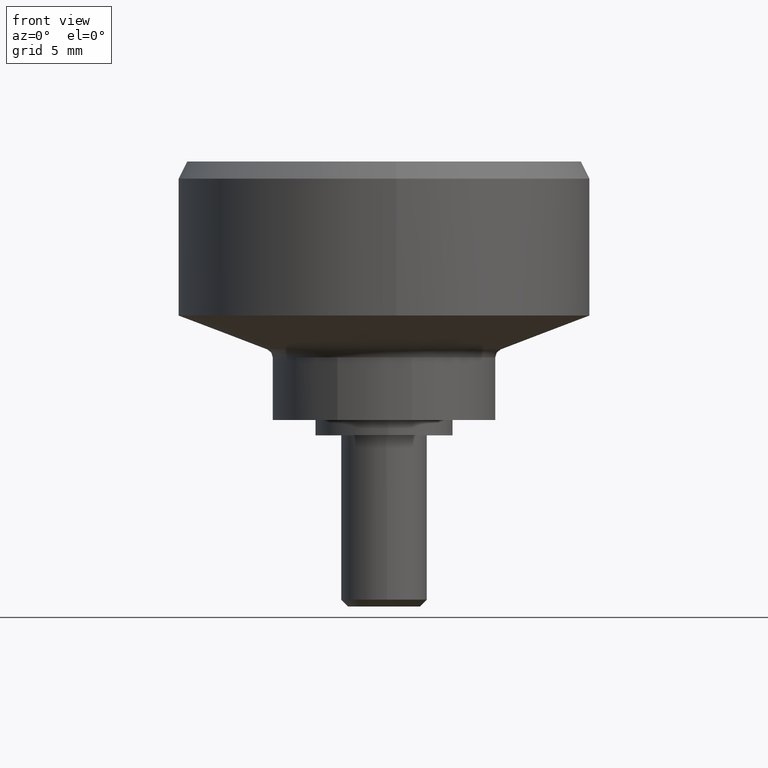
[diagram: clean part render]
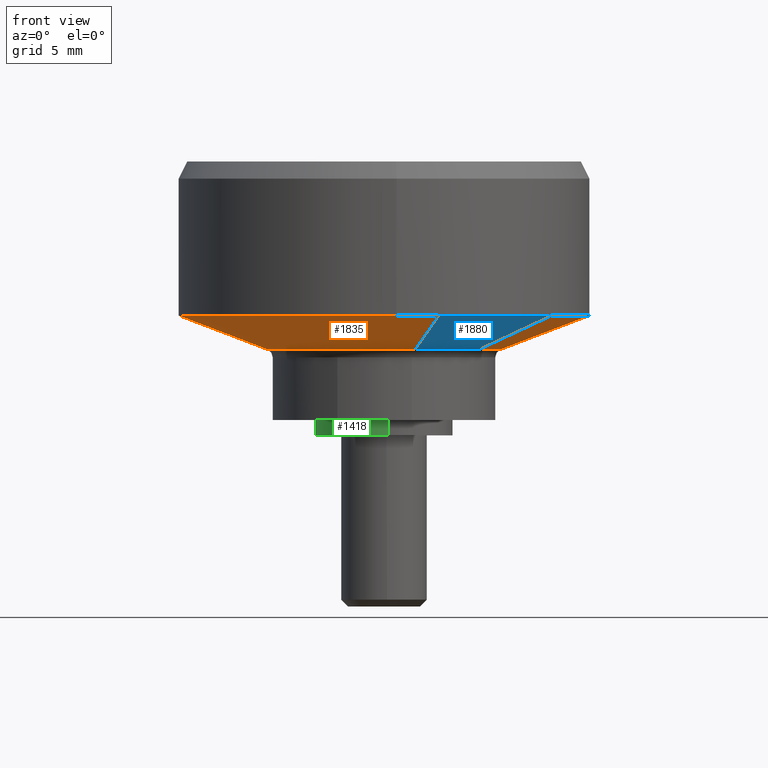
[diagram: same view with three faces highlighted in distinct colors, each labeled with its STEP entity id]
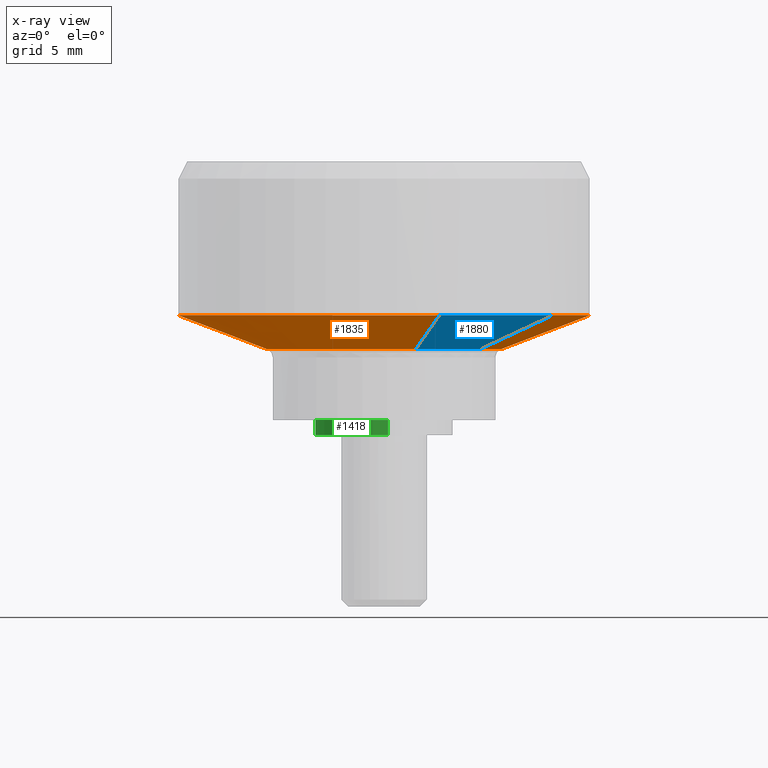
[diagram: x-ray of the same camera — body ghosted, the three highlighted faces saturated]
A machine part, front view with three faces highlighted in distinct colors.
The next image is the same camera in x-ray (body ghosted, the three faces saturated) — at least one of them is partly hidden behind the body in this view.
Their STEP definitions:

[orange] entity #1835 — the highlighted face is a freeform B-spline surface patch.
#1635=CARTESIAN_POINT('',(5.467015541842025,-3.855292350006404,4.972407251425723));
#1636=CARTESIAN_POINT('',(7.293157619141127,-1.265722944669534,4.972407251425723));
#1637=CARTESIAN_POINT('',(6.446359170171644,1.787733617713811,4.972407251425723));
#1638=CARTESIAN_POINT('',(4.658625552457833,8.234092787885455,4.972407251425723));
#1639=CARTESIAN_POINT('',(-1.787733617713811,6.446359170171644,4.972407251425723));
#1640=CARTESIAN_POINT('',(-8.234092787885455,4.658625552457833,4.972407251425723));
#1641=CARTESIAN_POINT('',(-6.446359170171644,-1.787733617713811,4.972407251425723));
#1642=CARTESIAN_POINT('',(-4.658625552457833,-8.234092787885455,4.972407251425723));
#1643=CARTESIAN_POINT('',(1.787733617713811,-6.446359170171644,4.972407251425723));
#1644=CARTESIAN_POINT('',(9.915300472576435,-6.992184632981497,7.050689818714460));
#1645=CARTESIAN_POINT('',(13.227298995985558,-2.295589470229332,7.050689818714459));
#1646=CARTESIAN_POINT('',(11.691495595211769,3.242338685319716,7.050689818714460));
#1647=CARTESIAN_POINT('',(8.449156909892054,14.933834280531485,7.050689818714460));
#1648=CARTESIAN_POINT('',(-3.242338685319716,11.691495595211769,7.050689818714460));
#1649=CARTESIAN_POINT('',(-14.933834280531485,8.449156909892054,7.050689818714460));
#1650=CARTESIAN_POINT('',(-11.691495595211769,-3.242338685319716,7.050689818714460));
#1651=CARTESIAN_POINT('',(-8.449156909892054,-14.933834280531485,7.050689818714460));
#1652=CARTESIAN_POINT('',(3.242338685319716,-11.691495595211769,7.050689818714460));
#1660=(BOUNDED_SURFACE()B_SPLINE_SURFACE(2,1,((#1635,#1644),(#1636,#1645),(#1637,#1646),(#1638,#1647),(#1639,#1648),(#1640,#1649),(#1641,#1650),(#1642,#1651),(#1643,#1652)),.UNSPECIFIED.,.F.,.F.,.U.)B_SPLINE_SURFACE_WITH_KNOTS((3,2,2,2,3),(2,2),(0.0,11.257239010447091,31.359451529102600,51.461664047758120,71.563876566413640),(0.0,5.826370263679075),.UNSPECIFIED.)GEOMETRIC_REPRESENTATION_ITEM()RATIONAL_B_SPLINE_SURFACE(((0.855662221768731,0.855662221768731),(0.835979797464467,0.835979797464467),(1.0,1.0),(0.707106781186548,0.707106781186548),(1.0,1.0),(0.707106781186548,0.707106781186548),(1.0,1.0),(0.707106781186548,0.707106781186548),(1.0,1.0)))REPRESENTATION_ITEM('')SURFACE());
#1661=CARTESIAN_POINT('',(12.0,0.0,7.000000000000100));
#1662=VERTEX_POINT('',#1661);
#1663=CARTESIAN_POINT('',(9.806805718163803,-6.915675065111017,7.000000000000236));
#1664=VERTEX_POINT('',#1663);
#1665=CARTESIAN_POINT('',(12.0,0.0,7.000000000000100));
#1666=CARTESIAN_POINT('',(11.999999999999998,-3.805605545992757,7.000000000000100));
#1667=CARTESIAN_POINT('',(9.806805718163803,-6.915675065111017,7.000000000000236));
#1675=(BOUNDED_CURVE()B_SPLINE_CURVE(2,(#1665,#1666,#1667),.UNSPECIFIED.,.F.,.U.)B_SPLINE_CURVE_WITH_KNOTS((3,3),(0.500000000000000,0.599105163479123),.UNSPECIFIED.)CURVE()GEOMETRIC_REPRESENTATION_ITEM()RATIONAL_B_SPLINE_CURVE((1.0,0.883891078670265,0.859838106378674))REPRESENTATION_ITEM(''));
#1676=EDGE_CURVE('',#1662,#1664,#1675,.T.);
#1677=ORIENTED_EDGE('',*,*,#1676,.T.);
#1678=CARTESIAN_POINT('',(5.572863938172661,-3.929935704903423,5.021860660275134));
#1679=VERTEX_POINT('',#1678);
#1680=CARTESIAN_POINT('',(5.572863938172661,-3.929935704903423,5.021860660275134));
#1681=CARTESIAN_POINT('',(9.806805718163803,-6.915675065111017,7.000000000000236));
#1682=QUASI_UNIFORM_CURVE('',1,(#1680,#1681),.UNSPECIFIED.,.F.,.U.);
#1683=EDGE_CURVE('',#1679,#1664,#1682,.T.);
#1684=ORIENTED_EDGE('',*,*,#1683,.F.);
#1685=CARTESIAN_POINT('',(6.819179549401331,0.0,5.021860733314310));
#1686=VERTEX_POINT('',#1685);
#1687=CARTESIAN_POINT('',(6.819179549401331,0.0,5.021860733314310));
#1688=CARTESIAN_POINT('',(6.819179549401332,-2.162592271084254,5.021860733314310));
#1689=CARTESIAN_POINT('',(5.572863938172660,-3.929935704903423,5.021860660275134));
#1697=(BOUNDED_CURVE()B_SPLINE_CURVE(2,(#1687,#1688,#1689),.UNSPECIFIED.,.F.,.U.)B_SPLINE_CURVE_WITH_KNOTS((3,3),(0.500000000000000,0.599105162603816),.UNSPECIFIED.)CURVE()GEOMETRIC_REPRESENTATION_ITEM()RATIONAL_B_SPLINE_CURVE((1.0,0.883891079695750,0.859838106803551))REPRESENTATION_ITEM(''));
#1698=EDGE_CURVE('',#1686,#1679,#1697,.T.);
#1699=ORIENTED_EDGE('',*,*,#1698,.F.);
#1700=CARTESIAN_POINT('',(-1.844081191552246,6.565102762351328,5.021860733152093));
#1701=VERTEX_POINT('',#1700);
#1702=CARTESIAN_POINT('',(-1.844081191552246,6.565102762351328,5.021860733152093));
#1703=CARTESIAN_POINT('',(-0.939543896083612,6.819179549401331,5.021860733314309));
#1704=CARTESIAN_POINT('',(0.0,6.819179549401331,5.021860733314310));
#1705=CARTESIAN_POINT('',(6.819179549401331,6.819179549401331,5.021860733314309));
#1706=CARTESIAN_POINT('',(6.819179549401331,0.0,5.021860733314310));
#1714=(BOUNDED_CURVE()B_SPLINE_CURVE(2,(#1702,#1703,#1704,#1705,#1706),.UNSPECIFIED.,.F.,.U.)B_SPLINE_CURVE_WITH_KNOTS((3,2,3),(0.203917489193442,0.250000000000000,0.500000000000000),.UNSPECIFIED.)CURVE()GEOMETRIC_REPRESENTATION_ITEM()RATIONAL_B_SPLINE_CURVE((0.911925557295283,0.946010980315446,1.0,0.707106781186547,1.0))REPRESENTATION_ITEM(''));
#1715=EDGE_CURVE('',#1701,#1686,#1714,.T.);
#1716=ORIENTED_EDGE('',*,*,#1715,.F.);
#1717=CARTESIAN_POINT('',(-6.819179549401331,0.0,5.021860733314310));
#1718=VERTEX_POINT('',#1717);
#1719=CARTESIAN_POINT('',(-6.819179549401331,0.0,5.021860733314310));
#1720=CARTESIAN_POINT('',(-6.819179549401332,5.167640203539840,5.021860733314310));
#1721=CARTESIAN_POINT('',(-1.844081191552246,6.565102762351328,5.021860733152093));
#1729=(BOUNDED_CURVE()B_SPLINE_CURVE(2,(#1719,#1720,#1721),.UNSPECIFIED.,.F.,.U.)B_SPLINE_CURVE_WITH_KNOTS((3,3),(0.0,0.203917489193442),.UNSPECIFIED.)CURVE()GEOMETRIC_REPRESENTATION_ITEM()RATIONAL_B_SPLINE_CURVE((1.0,0.761095800871102,0.911925557295283))REPRESENTATION_ITEM(''));
#1730=EDGE_CURVE('',#1718,#1701,#1729,.T.);
#1731=ORIENTED_EDGE('',*,*,#1730,.F.);
#1732=CARTESIAN_POINT('',(-6.308267569937057,-2.589781841286591,5.021860733098269));
#1733=VERTEX_POINT('',#1732);
#1734=CARTESIAN_POINT('',(-6.308267569937058,-2.589781841286591,5.021860733098269));
#1735=CARTESIAN_POINT('',(-6.819179549401331,-1.345287260341393,5.021860733314310));
#1736=CARTESIAN_POINT('',(-6.819179549401331,0.0,5.021860733314310));
#1744=(BOUNDED_CURVE()B_SPLINE_CURVE(2,(#1734,#1735,#1736),.UNSPECIFIED.,.F.,.U.)B_SPLINE_CURVE_WITH_KNOTS((3,3),(0.935520056551151,1.0),.UNSPECIFIED.)CURVE()GEOMETRIC_REPRESENTATION_ITEM()RATIONAL_B_SPLINE_CURVE((0.887882137081259,0.924457047257429,1.0))REPRESENTATION_ITEM(''));
#1745=EDGE_CURVE('',#1733,#1718,#1744,.T.);
#1746=ORIENTED_EDGE('',*,*,#1745,.F.);
#1747=CARTESIAN_POINT('',(1.822346469014642,-6.571169079693356,5.021860733316403));
#1748=VERTEX_POINT('',#1747);
#1749=CARTESIAN_POINT('',(1.822346469014642,-6.571169079693356,5.021860733316403));
#1750=CARTESIAN_POINT('',(0.928049606321761,-6.819179549401330,5.021860733314310));
#1751=CARTESIAN_POINT('',(0.0,-6.819179549401331,5.021860733314310));
#1752=CARTESIAN_POINT('',(-4.571940240927900,-6.819179549401331,5.021860733314309));
#1753=CARTESIAN_POINT('',(-6.308267569937057,-2.589781841286591,5.021860733098269));
#1761=(BOUNDED_CURVE()B_SPLINE_CURVE(2,(#1749,#1750,#1751,#1752,#1753),.UNSPECIFIED.,.F.,.U.)B_SPLINE_CURVE_WITH_KNOTS((3,2,3),(0.704451173363797,0.750000000000000,0.935520056551151),.UNSPECIFIED.)CURVE()GEOMETRIC_REPRESENTATION_ITEM()RATIONAL_B_SPLINE_CURVE((0.912717717216091,0.946636230213387,1.0,0.782649733929119,0.887882137081258))REPRESENTATION_ITEM(''));
#1762=EDGE_CURVE('',#1748,#1733,#1761,.T.);
#1763=ORIENTED_EDGE('',*,*,#1762,.F.);
#1764=CARTESIAN_POINT('',(3.206857090964961,-11.563560053254580,6.999997669421440));
#1765=VERTEX_POINT('',#1764);
#1766=CARTESIAN_POINT('',(1.822346469014642,-6.571169079693356,5.021860733316403));
#1767=CARTESIAN_POINT('',(3.206857090964961,-11.563560053254580,6.999997669421440));
#1768=QUASI_UNIFORM_CURVE('',1,(#1766,#1767),.UNSPECIFIED.,.F.,.U.);
#1769=EDGE_CURVE('',#1748,#1765,#1768,.T.);
#1770=ORIENTED_EDGE('',*,*,#1769,.T.);
#1771=CARTESIAN_POINT('',(0.732582480523389,-11.977617580689000,7.000000000000099));
#1772=VERTEX_POINT('',#1771);
#1773=CARTESIAN_POINT('',(3.206857090964962,-11.563560053254582,6.999997669421440));
#1774=CARTESIAN_POINT('',(1.991479060193668,-11.900617175267039,6.999998834710769));
#1775=CARTESIAN_POINT('',(0.732582480523389,-11.977617580688998,7.000000000000099));
#1783=(BOUNDED_CURVE()B_SPLINE_CURVE(2,(#1773,#1774,#1775),.UNSPECIFIED.,.F.,.U.)B_SPLINE_CURVE_WITH_KNOTS((3,3),(0.704451198352973,0.739332962066071),.UNSPECIFIED.)CURVE()GEOMETRIC_REPRESENTATION_ITEM()RATIONAL_B_SPLINE_CURVE((0.912717754433111,0.938692911541862,0.976072041296221))REPRESENTATION_ITEM(''));
#1784=EDGE_CURVE('',#1765,#1772,#1783,.T.);
#1785=ORIENTED_EDGE('',*,*,#1784,.T.);
#1786=CARTESIAN_POINT('',(-12.0,0.0,7.000000000000100));
#1787=VERTEX_POINT('',#1786);
#1788=CARTESIAN_POINT('',(0.732582480523389,-11.977617580688996,7.000000000000099));
#1789=CARTESIAN_POINT('',(0.366633165705291,-11.999999999999998,7.000000000000100));
#1790=CARTESIAN_POINT('',(0.0,-12.0,7.000000000000100));
#1791=CARTESIAN_POINT('',(-12.0,-12.0,7.000000000000100));
#1792=CARTESIAN_POINT('',(-12.0,0.0,7.000000000000100));
#1800=(BOUNDED_CURVE()B_SPLINE_CURVE(2,(#1788,#1789,#1790,#1791,#1792),.UNSPECIFIED.,.F.,.U.)B_SPLINE_CURVE_WITH_KNOTS((3,2,3),(0.739332962066071,0.750000000000000,1.0),.UNSPECIFIED.)CURVE()GEOMETRIC_REPRESENTATION_ITEM()RATIONAL_B_SPLINE_CURVE((0.976072041296220,0.987502787697305,1.0,0.707106781186548,1.0))REPRESENTATION_ITEM(''));
#1801=EDGE_CURVE('',#1772,#1787,#1800,.T.);
#1802=ORIENTED_EDGE('',*,*,#1801,.T.);
#1803=CARTESIAN_POINT('',(11.233724905231091,4.219410474646876,7.000000000000100));
#1804=VERTEX_POINT('',#1803);
#1805=CARTESIAN_POINT('',(-12.0,0.0,7.000000000000100));
#1806=CARTESIAN_POINT('',(-12.0,12.0,7.000000000000100));
#1807=CARTESIAN_POINT('',(0.0,12.0,7.000000000000100));
#1808=CARTESIAN_POINT('',(8.311319272269587,12.000000000000002,7.000000000000100));
#1809=CARTESIAN_POINT('',(11.233724905231083,4.219410474646877,7.000000000000100));
#1817=(BOUNDED_CURVE()B_SPLINE_CURVE(2,(#1805,#1806,#1807,#1808,#1809),.UNSPECIFIED.,.F.,.U.)B_SPLINE_CURVE_WITH_KNOTS((3,2,3),(0.0,0.250000000000000,0.440284244266455),.UNSPECIFIED.)CURVE()GEOMETRIC_REPRESENTATION_ITEM()RATIONAL_B_SPLINE_CURVE((1.0,0.707106781186548,1.0,0.777068140829251,0.893499644420276))REPRESENTATION_ITEM(''));
#1818=EDGE_CURVE('',#1787,#1804,#1817,.T.);
#1819=ORIENTED_EDGE('',*,*,#1818,.T.);
#1820=CARTESIAN_POINT('',(11.233724905231083,4.219410474646877,7.000000000000100));
#1821=CARTESIAN_POINT('',(12.000000000000004,2.179285753889827,7.000000000000100));
#1822=CARTESIAN_POINT('',(12.0,0.0,7.000000000000100));
#1830=(BOUNDED_CURVE()B_SPLINE_CURVE(2,(#1820,#1821,#1822),.UNSPECIFIED.,.F.,.U.)B_SPLINE_CURVE_WITH_KNOTS((3,3),(0.440284244266455,0.500000000000000),.UNSPECIFIED.)CURVE()GEOMETRIC_REPRESENTATION_ITEM()RATIONAL_B_SPLINE_CURVE((0.893499644420276,0.930038640357296,1.0))REPRESENTATION_ITEM(''));
#1831=EDGE_CURVE('',#1804,#1662,#1830,.T.);
#1832=ORIENTED_EDGE('',*,*,#1831,.T.);
#1833=EDGE_LOOP('',(#1677,#1684,#1699,#1716,#1731,#1746,#1763,#1770,#1785,#1802,#1819,#1832));
#1834=FACE_OUTER_BOUND('',#1833,.T.);
#1835=ADVANCED_FACE('',(#1834),#1660,.T.);

[blue] entity #1880 — the highlighted face is a freeform B-spline surface patch.
#1663=CARTESIAN_POINT('',(9.806805718163803,-6.915675065111017,7.000000000000236));
#1664=VERTEX_POINT('',#1663);
#1678=CARTESIAN_POINT('',(5.572863938172661,-3.929935704903423,5.021860660275134));
#1679=VERTEX_POINT('',#1678);
#1680=CARTESIAN_POINT('',(5.572863938172661,-3.929935704903423,5.021860660275134));
#1681=CARTESIAN_POINT('',(9.806805718163803,-6.915675065111017,7.000000000000236));
#1682=QUASI_UNIFORM_CURVE('',1,(#1680,#1681),.UNSPECIFIED.,.F.,.U.);
#1683=EDGE_CURVE('',#1679,#1664,#1682,.T.);
#1747=CARTESIAN_POINT('',(1.822346469014642,-6.571169079693356,5.021860733316403));
#1748=VERTEX_POINT('',#1747);
#1764=CARTESIAN_POINT('',(3.206857090964961,-11.563560053254580,6.999997669421440));
#1765=VERTEX_POINT('',#1764);
#1766=CARTESIAN_POINT('',(1.822346469014642,-6.571169079693356,5.021860733316403));
#1767=CARTESIAN_POINT('',(3.206857090964961,-11.563560053254580,6.999997669421440));
#1768=QUASI_UNIFORM_CURVE('',1,(#1766,#1767),.UNSPECIFIED.,.F.,.U.);
#1769=EDGE_CURVE('',#1748,#1765,#1768,.T.);
#1836=CARTESIAN_POINT('',(1.787733617713811,-6.446359170171644,4.972407251425723));
#1837=CARTESIAN_POINT('',(4.090080258424170,-5.807861937768943,4.972407251425724));
#1838=CARTESIAN_POINT('',(5.467015541842025,-3.855292350006404,4.972407251425723));
#1839=CARTESIAN_POINT('',(3.242338685319716,-11.691495595211769,7.050689818714460));
#1840=CARTESIAN_POINT('',(7.418009773128347,-10.533479514641392,7.050689818714460));
#1841=CARTESIAN_POINT('',(9.915300472576435,-6.992184632981497,7.050689818714460));
#1849=(BOUNDED_SURFACE()B_SPLINE_SURFACE(2,1,((#1836,#1839),(#1837,#1840),(#1838,#1841)),.UNSPECIFIED.,.F.,.F.,.U.)B_SPLINE_SURFACE_WITH_KNOTS((3,3),(2,2),(0.0,8.823174537299503),(0.0,5.826370263679074),.UNSPECIFIED.)GEOMETRIC_REPRESENTATION_ITEM()RATIONAL_B_SPLINE_SURFACE(((1.0,1.0),(0.871126983722081,0.871126983722081),(0.855662221768731,0.855662221768731)))REPRESENTATION_ITEM('')SURFACE());
#1850=CARTESIAN_POINT('',(9.806805718163803,-6.915675065111017,7.000000000000236));
#1851=CARTESIAN_POINT('',(7.336839341170142,-10.418218464639253,6.999998834710837));
#1852=CARTESIAN_POINT('',(3.206857090964961,-11.563560053254580,6.999997669421440));
#1860=(BOUNDED_CURVE()B_SPLINE_CURVE(2,(#1850,#1851,#1852),.UNSPECIFIED.,.F.,.U.)B_SPLINE_CURVE_WITH_KNOTS((3,3),(0.599105163479122,0.704451198352973),.UNSPECIFIED.)CURVE()GEOMETRIC_REPRESENTATION_ITEM()RATIONAL_B_SPLINE_CURVE((0.859838106378674,0.834270465209468,0.912717754433111))REPRESENTATION_ITEM(''));
#1861=EDGE_CURVE('',#1664,#1765,#1860,.T.);
#1862=ORIENTED_EDGE('',*,*,#1861,.T.);
#1863=ORIENTED_EDGE('',*,*,#1769,.F.);
#1864=CARTESIAN_POINT('',(5.572863938172661,-3.929935704903424,5.021860660275134));
#1865=CARTESIAN_POINT('',(4.169269560669540,-5.920309703316282,5.021860733314310));
#1866=CARTESIAN_POINT('',(1.822346469014642,-6.571169079693356,5.021860733316403));
#1874=(BOUNDED_CURVE()B_SPLINE_CURVE(2,(#1864,#1865,#1866),.UNSPECIFIED.,.F.,.U.)B_SPLINE_CURVE_WITH_KNOTS((3,3),(0.599105162603817,0.704451173363798),.UNSPECIFIED.)CURVE()GEOMETRIC_REPRESENTATION_ITEM()RATIONAL_B_SPLINE_CURVE((0.859838106803550,0.834270470622571,0.912717717216092))REPRESENTATION_ITEM(''));
#1875=EDGE_CURVE('',#1679,#1748,#1874,.T.);
#1876=ORIENTED_EDGE('',*,*,#1875,.F.);
#1877=ORIENTED_EDGE('',*,*,#1683,.T.);
#1878=EDGE_LOOP('',(#1862,#1863,#1876,#1877));
#1879=FACE_OUTER_BOUND('',#1878,.T.);
#1880=ADVANCED_FACE('',(#1879),#1849,.T.);

[green] entity #1418 — the highlighted face is a freeform B-spline surface patch.
#1251=CARTESIAN_POINT('',(-0.472131148257166,3.972038793719337,0.899992999999817));
#1252=VERTEX_POINT('',#1251);
#1270=CARTESIAN_POINT('',(0.244194158159243,-3.992539193686255,0.899993000000109));
#1271=VERTEX_POINT('',#1270);
#1285=CARTESIAN_POINT('',(0.244194158159243,-3.992539193686255,1.040834E-017));
#1286=VERTEX_POINT('',#1285);
#1287=CARTESIAN_POINT('',(0.244194158159243,-3.992539193686255,0.899993000000109));
#1288=CARTESIAN_POINT('',(0.244194158159243,-3.992539193686255,1.040834E-017));
#1289=QUASI_UNIFORM_CURVE('',1,(#1287,#1288),.UNSPECIFIED.,.F.,.U.);
#1290=EDGE_CURVE('',#1271,#1286,#1289,.T.);
#1307=CARTESIAN_POINT('',(-0.472131217953858,3.972038785435033,8.873213E-018));
#1308=VERTEX_POINT('',#1307);
#1324=CARTESIAN_POINT('',(-0.472131148257166,3.972038793719337,0.899992999999817));
#1325=CARTESIAN_POINT('',(-0.472131217953858,3.972038785435033,8.873213E-018));
#1326=QUASI_UNIFORM_CURVE('',1,(#1324,#1325),.UNSPECIFIED.,.F.,.U.);
#1327=EDGE_CURVE('',#1252,#1308,#1326,.T.);
#1332=CARTESIAN_POINT('',(0.299212113393028,-3.989174151388836,0.922492825000112));
#1333=CARTESIAN_POINT('',(0.271781870300457,-3.990851856927741,0.922492825000112));
#1334=CARTESIAN_POINT('',(-3.748345035548039,-4.236733351826894,0.922492825000112));
#1335=CARTESIAN_POINT('',(-3.992539193687467,-0.244194158139428,0.922492825000112));
#1336=CARTESIAN_POINT('',(-4.223144786930110,3.526173963358004,0.922492825000112));
#1337=CARTESIAN_POINT('',(-0.444051693227486,3.975376462598149,0.922492825000112));
#1338=CARTESIAN_POINT('',(-0.416117392068918,3.978696877730516,0.922492825000112));
#1339=CARTESIAN_POINT('',(0.299212113393028,-3.989174151388836,-0.023062320625003));
#1340=CARTESIAN_POINT('',(0.271781870300457,-3.990851856927741,-0.023062320625003));
#1341=CARTESIAN_POINT('',(-3.748345035548039,-4.236733351826894,-0.023062320625003));
#1342=CARTESIAN_POINT('',(-3.992539193687467,-0.244194158139428,-0.023062320625003));
#1343=CARTESIAN_POINT('',(-4.223144786930110,3.526173963358004,-0.023062320625003));
#1344=CARTESIAN_POINT('',(-0.444051693227486,3.975376462598149,-0.023062320625003));
#1345=CARTESIAN_POINT('',(-0.416117392068918,3.978696877730516,-0.023062320625003));
#1353=(BOUNDED_SURFACE()B_SPLINE_SURFACE(2,1,((#1332,#1339),(#1333,#1340),(#1334,#1341),(#1335,#1342),(#1336,#1343),(#1337,#1344),(#1338,#1345)),.UNSPECIFIED.,.F.,.F.,.U.)B_SPLINE_SURFACE_WITH_KNOTS((3,1,2,1,3),(2,2),(0.0,0.064948718541379,6.692365716510897,13.054686034561630,13.119641431003821),(0.0,1.0),.UNSPECIFIED.)GEOMETRIC_REPRESENTATION_ITEM()RATIONAL_B_SPLINE_SURFACE(((1.005740709913748,1.005740709913748),(1.002870354956874,1.002870354956874),(0.707106781186548,0.707106781186548),(1.0,1.0),(0.718822509939086,0.718822509939086),(0.980146798869815,0.980146798869815),(0.982787796944504,0.982787796944504)))REPRESENTATION_ITEM('')SURFACE());
#1354=CARTESIAN_POINT('',(-4.0,0.0,0.899993000000109));
#1355=VERTEX_POINT('',#1354);
#1356=CARTESIAN_POINT('',(-4.0,0.0,0.899993000000109));
#1357=CARTESIAN_POINT('',(-4.000000000000001,3.552703319330028,0.899993000000109));
#1358=CARTESIAN_POINT('',(-0.472131148257166,3.972038793719336,0.899992999999817));
#1366=(BOUNDED_CURVE()B_SPLINE_CURVE(2,(#1356,#1357,#1358),.UNSPECIFIED.,.F.,.U.)B_SPLINE_CURVE_WITH_KNOTS((3,3),(0.0,0.229562719885739),.UNSPECIFIED.)CURVE()GEOMETRIC_REPRESENTATION_ITEM()RATIONAL_B_SPLINE_CURVE((1.0,0.731050544212380,0.956027237083923))REPRESENTATION_ITEM(''));
#1367=EDGE_CURVE('',#1355,#1252,#1366,.T.);
#1368=ORIENTED_EDGE('',*,*,#1367,.T.);
#1369=ORIENTED_EDGE('',*,*,#1327,.T.);
#1370=CARTESIAN_POINT('',(-4.0,0.0,0.0));
#1371=VERTEX_POINT('',#1370);
#1372=CARTESIAN_POINT('',(-4.0,0.0,0.0));
#1373=CARTESIAN_POINT('',(-4.000000000000001,3.552703256552524,0.0));
#1374=CARTESIAN_POINT('',(-0.472131217953858,3.972038785435033,8.873213E-018));
#1382=(BOUNDED_CURVE()B_SPLINE_CURVE(2,(#1372,#1373,#1374),.UNSPECIFIED.,.F.,.U.)B_SPLINE_CURVE_WITH_KNOTS((3,3),(0.0,0.229562716920267),.UNSPECIFIED.)CURVE()GEOMETRIC_REPRESENTATION_ITEM()RATIONAL_B_SPLINE_CURVE((1.0,0.731050547686647,0.956027231271462))REPRESENTATION_ITEM(''));
#1383=EDGE_CURVE('',#1371,#1308,#1382,.T.);
#1384=ORIENTED_EDGE('',*,*,#1383,.F.);
#1385=CARTESIAN_POINT('',(0.244194158159243,-3.992539193686255,1.040834E-017));
#1386=CARTESIAN_POINT('',(0.122211053214226,-4.0,0.0));
#1387=CARTESIAN_POINT('',(0.0,-4.0,0.0));
#1388=CARTESIAN_POINT('',(-4.000000000000000,-4.000000000000000,0.0));
#1389=CARTESIAN_POINT('',(-4.0,0.0,0.0));
#1397=(BOUNDED_CURVE()B_SPLINE_CURVE(2,(#1385,#1386,#1387,#1388,#1389),.UNSPECIFIED.,.F.,.U.)B_SPLINE_CURVE_WITH_KNOTS((3,2,3),(0.739332962240256,0.750000000000000,1.0),.UNSPECIFIED.)CURVE()GEOMETRIC_REPRESENTATION_ITEM()RATIONAL_B_SPLINE_CURVE((0.976072041669531,0.987502787901375,1.0,0.707106781186548,1.0))REPRESENTATION_ITEM(''));
#1398=EDGE_CURVE('',#1286,#1371,#1397,.T.);
#1399=ORIENTED_EDGE('',*,*,#1398,.F.);
#1400=ORIENTED_EDGE('',*,*,#1290,.F.);
#1401=CARTESIAN_POINT('',(0.244194158159243,-3.992539193686255,0.899993000000109));
#1402=CARTESIAN_POINT('',(0.122211053214226,-4.0,0.899993000000109));
#1403=CARTESIAN_POINT('',(0.0,-4.0,0.899993000000109));
#1404=CARTESIAN_POINT('',(-4.000000000000000,-4.000000000000000,0.899993000000109));
#1405=CARTESIAN_POINT('',(-4.0,0.0,0.899993000000109));
#1413=(BOUNDED_CURVE()B_SPLINE_CURVE(2,(#1401,#1402,#1403,#1404,#1405),.UNSPECIFIED.,.F.,.U.)B_SPLINE_CURVE_WITH_KNOTS((3,2,3),(0.739332962240256,0.750000000000000,1.0),.UNSPECIFIED.)CURVE()GEOMETRIC_REPRESENTATION_ITEM()RATIONAL_B_SPLINE_CURVE((0.976072041669531,0.987502787901375,1.0,0.707106781186548,1.0))REPRESENTATION_ITEM(''));
#1414=EDGE_CURVE('',#1271,#1355,#1413,.T.);
#1415=ORIENTED_EDGE('',*,*,#1414,.T.);
#1416=EDGE_LOOP('',(#1368,#1369,#1384,#1399,#1400,#1415));
#1417=FACE_OUTER_BOUND('',#1416,.T.);
#1418=ADVANCED_FACE('',(#1417),#1353,.T.);